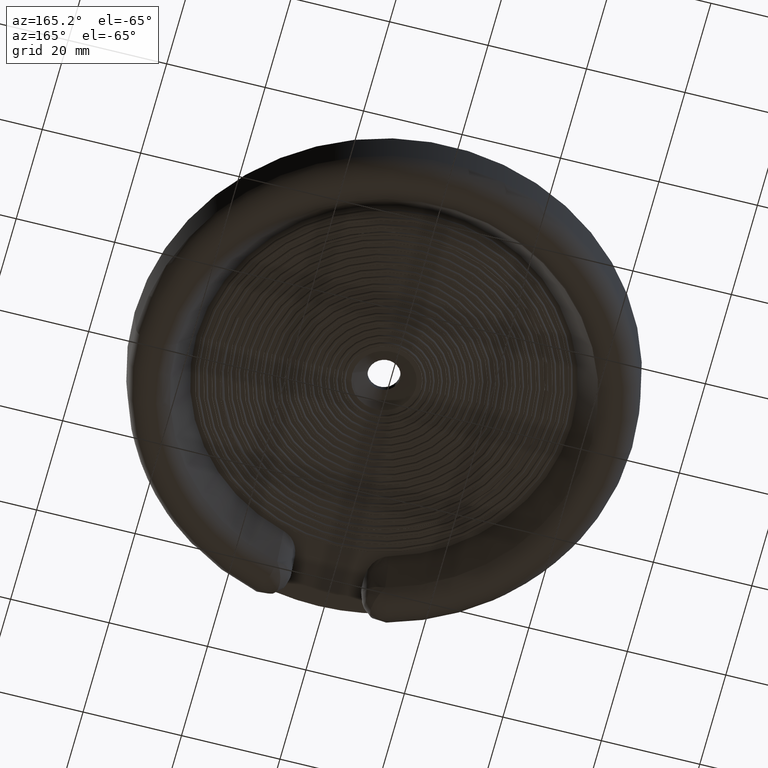
[diagram: clean part render]
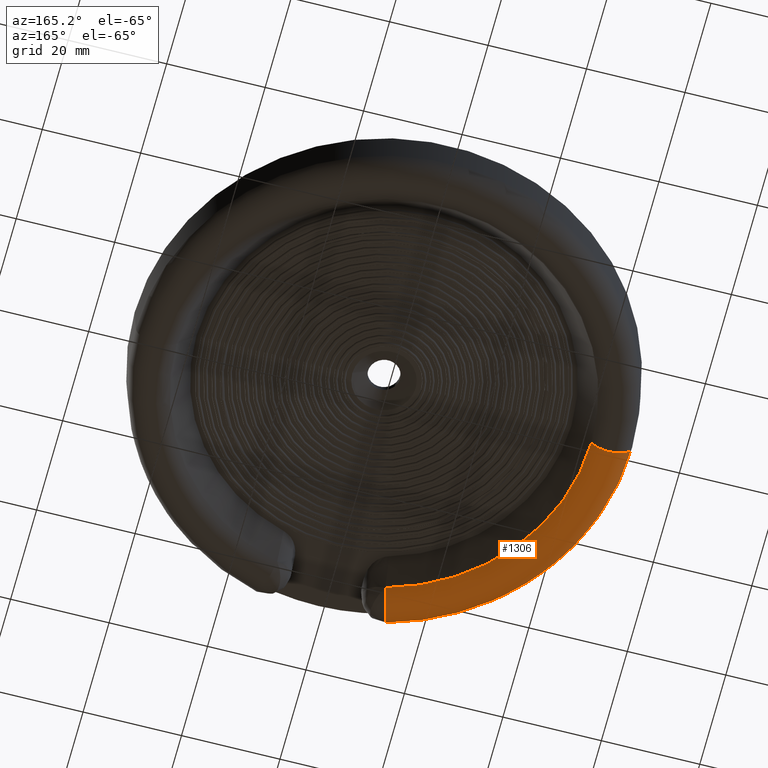
[diagram: same view with one face highlighted and labeled with its STEP entity id]
A machine part, auxiliary view. The second image highlights one B-rep face of the part: STEP entity #1306.
In plain terms, the highlighted toroidal blend (fillet) surface has major radius 45.8656 mm and minor (blend) radius 4.5357 mm.
Its self-contained STEP definition (entity closure, byte-faithful):
#11 = AXIS2_PLACEMENT_3D ( 'NONE', #2553, #2555, #2556 ) ;
#13 = AXIS2_PLACEMENT_3D ( 'NONE', #2525, #2551, #2552 ) ;
#14 = AXIS2_PLACEMENT_3D ( 'NONE', #2550, #2558, #2559 ) ;
#16 = AXIS2_PLACEMENT_3D ( 'NONE', #2557, #2564, #2565 ) ;
#440 = ORIENTED_EDGE ( 'NONE', *, *, #5343, .T. ) ;
#441 = ORIENTED_EDGE ( 'NONE', *, *, #5345, .F. ) ;
#451 = ORIENTED_EDGE ( 'NONE', *, *, #5347, .T. ) ;
#634 = VERTEX_POINT ( 'NONE', #1016 ) ;
#635 = VERTEX_POINT ( 'NONE', #1017 ) ;
#636 = VERTEX_POINT ( 'NONE', #1018 ) ;
#640 = VERTEX_POINT ( 'NONE', #1022 ) ;
#776 = FACE_OUTER_BOUND ( 'NONE', #5845, .T. ) ;
#779 = TOROIDAL_SURFACE ( 'NONE', #3422, 1.805731339231681200, 0.1785701401265921400 ) ;
#1016 = CARTESIAN_POINT ( 'NONE',  ( -1.657689983730317000, 6.446519103767712300E-015, -0.5462850150039734200 ) ) ;
#1017 = CARTESIAN_POINT ( 'NONE',  ( -0.4368674751871350900, -1.599088143687959800, -0.5462850150039865200 ) ) ;
#1018 = CARTESIAN_POINT ( 'NONE',  ( -1.984192699253703100, 6.445252525975564500E-015, -0.4526618678899335100 ) ) ;
#1022 = CARTESIAN_POINT ( 'NONE',  ( -0.5229139726458957900, -1.914048495985244200, -0.4526618678899422300 ) ) ;
#1306 = ADVANCED_FACE ( 'NONE', ( #776 ), #779, .T. ) ;
#1907 = DIRECTION ( 'NONE',  ( 0.0000000000000000000, -1.665334536937734100E-016, -1.000000000000000000 ) ) ;
#1911 = CARTESIAN_POINT ( 'NONE',  ( 8.741913579725642300E-015, 6.556435184794231700E-015, -0.4464298598734276500 ) ) ;
#2525 = CARTESIAN_POINT ( 'NONE',  ( -0.4758822812340641200, -1.741896014086626000, -0.4464298598734189300 ) ) ;
#2550 = CARTESIAN_POINT ( 'NONE',  ( 0.0000000000000000000, 3.278217592397115900E-015, -0.5462850150039734200 ) ) ;
#2551 = DIRECTION ( 'NONE',  ( -0.9646484924096130300, 0.2635399136598877700, -1.873501354054952200E-016 ) ) ;
#2552 = DIRECTION ( 'NONE',  ( -0.2635399136598872700, -0.9646484924096130300, 0.0000000000000000000 ) ) ;
#2553 = CARTESIAN_POINT ( 'NONE',  ( -1.805731339231672100, 6.456196959339120000E-015, -0.4464298598734277000 ) ) ;
#2555 = DIRECTION ( 'NONE',  ( 5.551115123125782700E-017, -1.000000000000000000, 1.665334536937734100E-016 ) ) ;
#2556 = DIRECTION ( 'NONE',  ( 0.0000000000000000000, -1.665334536937744200E-016, -1.000000000000000000 ) ) ;
#2557 = CARTESIAN_POINT ( 'NONE',  ( 8.741913579725642300E-015, 0.0000000000000000000, -0.4526618678899334600 ) ) ;
#2558 = DIRECTION ( 'NONE',  ( 0.0000000000000000000, -1.665334536937734100E-016, -1.000000000000000000 ) ) ;
#2559 = DIRECTION ( 'NONE',  ( -1.000000000000000000, -5.551115123125785200E-017, -4.119962146837549300E-017 ) ) ;
#2564 = DIRECTION ( 'NONE',  ( 0.0000000000000000000, -1.665334536937734100E-016, -1.000000000000000000 ) ) ;
#2565 = DIRECTION ( 'NONE',  ( -1.000000000000000000, -5.551115123125785200E-017, -6.884028942077441600E-017 ) ) ;
#3245 = ORIENTED_EDGE ( 'NONE', *, *, #5344, .T. ) ;
#3422 = AXIS2_PLACEMENT_3D ( 'NONE', #1911, #1907, #4264 ) ;
#3545 = CIRCLE ( 'NONE', #13, 0.1785701401265920900 ) ;
#3547 = CIRCLE ( 'NONE', #11, 0.1785701401265921100 ) ;
#3548 = CIRCLE ( 'NONE', #14, 1.657689983730316700 ) ;
#3551 = CIRCLE ( 'NONE', #16, 1.984192699253712200 ) ;
#4264 = DIRECTION ( 'NONE',  ( -1.000000000000000000, -5.551115123125795000E-017, 1.528477690458090000E-032 ) ) ;
#5343 = EDGE_CURVE ( 'NONE', #635, #640, #3545, .T. ) ;
#5344 = EDGE_CURVE ( 'NONE', #636, #634, #3547, .T. ) ;
#5345 = EDGE_CURVE ( 'NONE', #635, #634, #3548, .T. ) ;
#5347 = EDGE_CURVE ( 'NONE', #640, #636, #3551, .T. ) ;
#5845 = EDGE_LOOP ( 'NONE', ( #451, #3245, #441, #440 ) ) ;